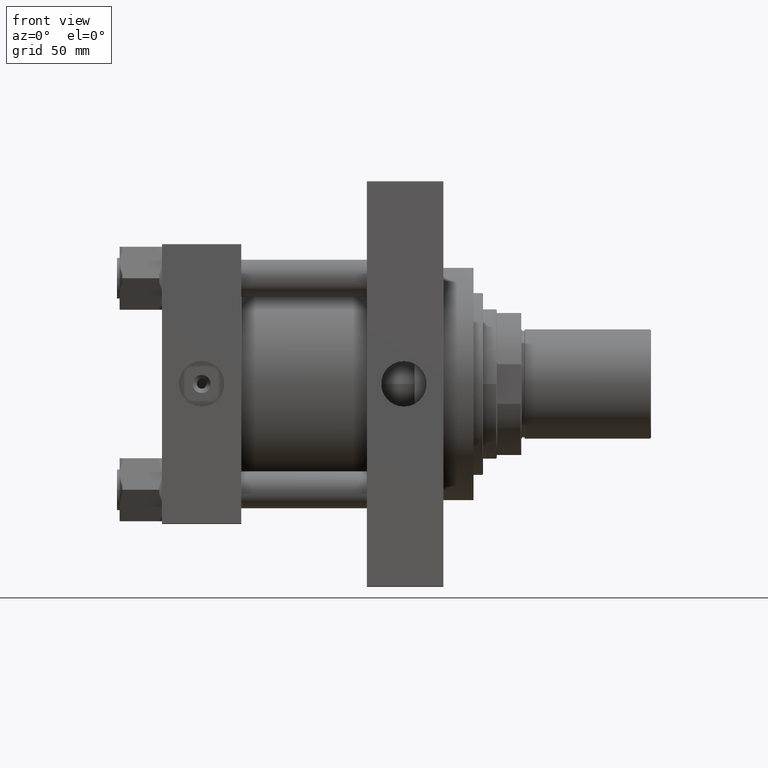
[diagram: clean part render]
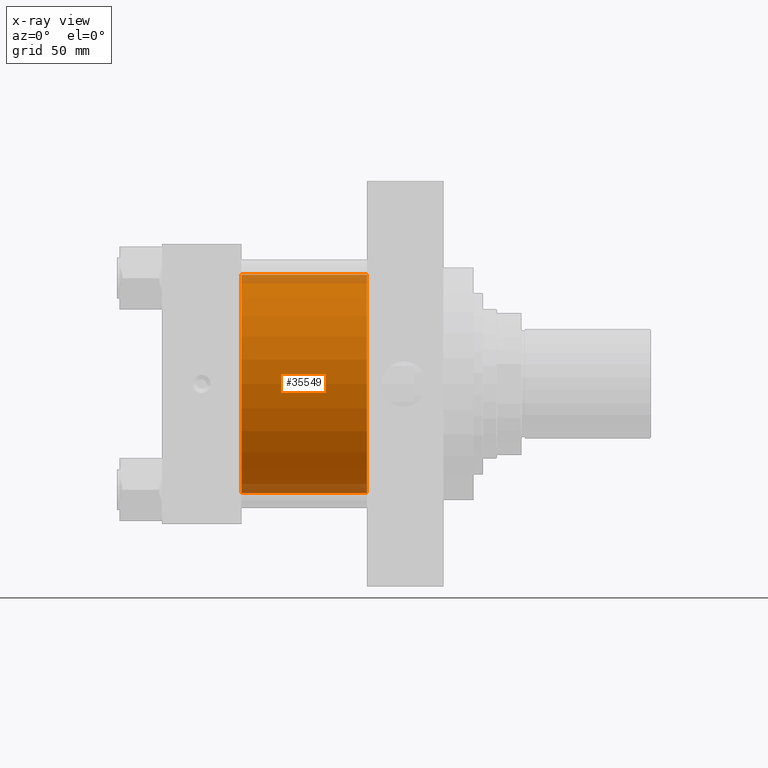
[diagram: x-ray — body ghosted, one internal face saturated and labeled with its STEP entity id]
A machine part, front view, then the same camera in x-ray: the body is ghosted and one INTERNAL B-rep face — a face not visible from any outside direction — is saturated and labeled: STEP entity #35549.
In plain terms, the highlighted cylindrical surface (partial cylindrical patch) has radius 80 mm, axis along (-1, -0, -0).
Its self-contained STEP definition (entity closure, byte-faithful):
#425 = VERTEX_POINT ( 'NONE', #47624 ) ;
#989 = CARTESIAN_POINT ( 'NONE',  ( 150.0000000000000000, 7.195089179213615410E-15, -80.00000000000000000 ) ) ;
#1457 = CARTESIAN_POINT ( 'NONE',  ( 150.0000000000000000, -2.602085213965210642E-15, 0.000000000000000000 ) ) ;
#2117 = CARTESIAN_POINT ( 'NONE',  ( 58.00000000000000000, -2.602085213965210642E-15, 0.000000000000000000 ) ) ;
#4482 = AXIS2_PLACEMENT_3D ( 'NONE', #1457, #49048, #25609 ) ;
#5271 = FACE_OUTER_BOUND ( 'NONE', #45111, .T. ) ;
#5511 = ORIENTED_EDGE ( 'NONE', *, *, #20003, .F. ) ;
#7120 = AXIS2_PLACEMENT_3D ( 'NONE', #47553, #12658, #28196 ) ;
#10132 = CIRCLE ( 'NONE', #40240, 80.00000000000000000 ) ;
#10860 = VERTEX_POINT ( 'NONE', #35430 ) ;
#12658 = DIRECTION ( 'NONE',  ( 1.000000000000000000, 0.000000000000000000, 0.000000000000000000 ) ) ;
#13909 = CYLINDRICAL_SURFACE ( 'NONE', #4482, 80.00000000000000000 ) ;
#15007 = ORIENTED_EDGE ( 'NONE', *, *, #33960, .T. ) ;
#17147 = DIRECTION ( 'NONE',  ( 0.000000000000000000, 0.000000000000000000, -1.000000000000000000 ) ) ;
#17566 = ORIENTED_EDGE ( 'NONE', *, *, #25416, .F. ) ;
#19154 = LINE ( 'NONE', #30621, #29696 ) ;
#19849 = DIRECTION ( 'NONE',  ( -1.000000000000000000, -0.000000000000000000, -0.000000000000000000 ) ) ;
#20003 = EDGE_CURVE ( 'NONE', #22231, #10860, #10132, .T. ) ;
#22231 = VERTEX_POINT ( 'NONE', #40479 ) ;
#25416 = EDGE_CURVE ( 'NONE', #425, #22231, #39713, .T. ) ;
#25609 = DIRECTION ( 'NONE',  ( 0.000000000000000000, 0.000000000000000000, 1.000000000000000000 ) ) ;
#27053 = DIRECTION ( 'NONE',  ( -1.000000000000000000, -0.000000000000000000, -0.000000000000000000 ) ) ;
#27420 = VECTOR ( 'NONE', #19849, 1000.000000000000000 ) ;
#28196 = DIRECTION ( 'NONE',  ( 0.000000000000000000, 0.000000000000000000, -1.000000000000000000 ) ) ;
#29591 = DIRECTION ( 'NONE',  ( 1.000000000000000000, 0.000000000000000000, 0.000000000000000000 ) ) ;
#29632 = EDGE_CURVE ( 'NONE', #425, #30320, #32329, .T. ) ;
#29696 = VECTOR ( 'NONE', #27053, 1000.000000000000000 ) ;
#30320 = VERTEX_POINT ( 'NONE', #989 ) ;
#30621 = CARTESIAN_POINT ( 'NONE',  ( 150.0000000000000000, 7.195089179213615410E-15, -80.00000000000000000 ) ) ;
#32329 = CIRCLE ( 'NONE', #7120, 80.00000000000000000 ) ;
#33960 = EDGE_CURVE ( 'NONE', #30320, #10860, #19154, .T. ) ;
#35430 = CARTESIAN_POINT ( 'NONE',  ( 58.00000000000000000, 7.195089179213615410E-15, -80.00000000000000000 ) ) ;
#35549 = ADVANCED_FACE ( 'NONE', ( #5271 ), #13909, .F. ) ;
#39713 = LINE ( 'NONE', #47361, #27420 ) ;
#40240 = AXIS2_PLACEMENT_3D ( 'NONE', #2117, #29591, #17147 ) ;
#40479 = CARTESIAN_POINT ( 'NONE',  ( 58.00000000000000000, -2.602085213965210642E-15, 80.00000000000000000 ) ) ;
#43252 = ORIENTED_EDGE ( 'NONE', *, *, #29632, .T. ) ;
#45111 = EDGE_LOOP ( 'NONE', ( #43252, #15007, #5511, #17566 ) ) ;
#47361 = CARTESIAN_POINT ( 'NONE',  ( 150.0000000000000000, -2.602085213965210642E-15, 80.00000000000000000 ) ) ;
#47553 = CARTESIAN_POINT ( 'NONE',  ( 150.0000000000000000, -2.602085213965210642E-15, 0.000000000000000000 ) ) ;
#47624 = CARTESIAN_POINT ( 'NONE',  ( 150.0000000000000000, -2.602085213965210642E-15, 80.00000000000000000 ) ) ;
#49048 = DIRECTION ( 'NONE',  ( -1.000000000000000000, -0.000000000000000000, -0.000000000000000000 ) ) ;